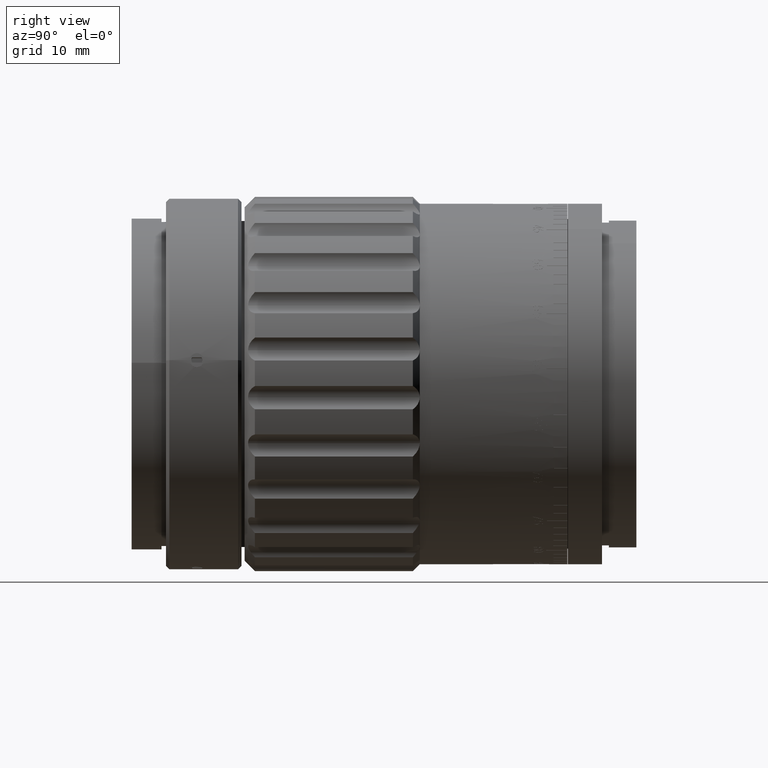
[diagram: clean part render]
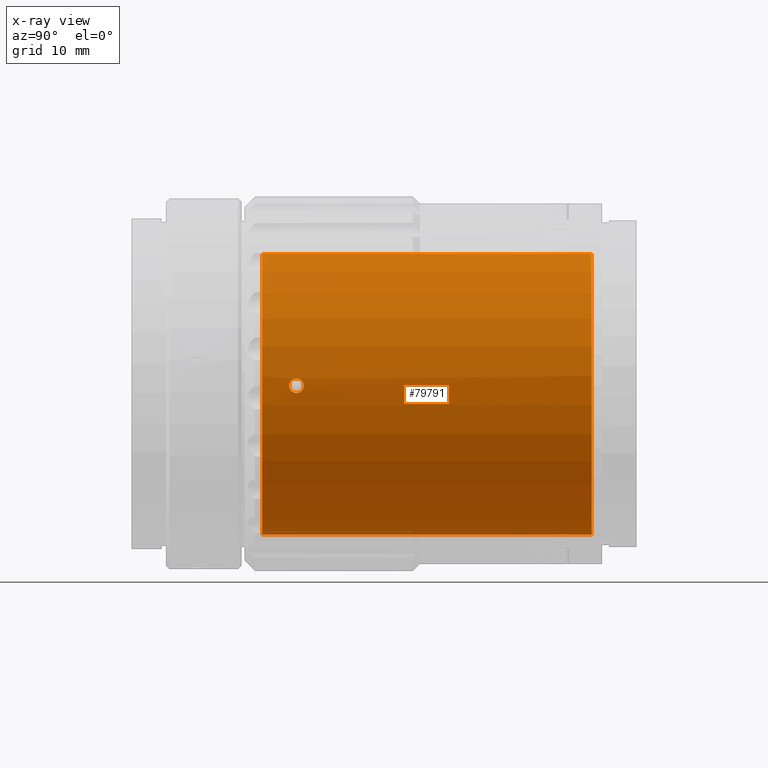
[diagram: x-ray — body ghosted, one internal face saturated and labeled with its STEP entity id]
A machine part, right view, then the same camera in x-ray: the body is ghosted and one INTERNAL B-rep face — a face not visible from any outside direction — is saturated and labeled: STEP entity #79791.
In plain terms, the highlighted cylindrical surface (partial cylindrical patch) has radius 22 mm, axis along (-0, 1, 0).
Its self-contained STEP definition (entity closure, byte-faithful):
#831 = ORIENTED_EDGE ( 'NONE', *, *, #1034, .T. ) ;
#1034 = EDGE_CURVE ( 'NONE', #81718, #77647, #15088, .T. ) ;
#2691 = VECTOR ( 'NONE', #80993, 1000.000000000000000 ) ;
#2780 = CARTESIAN_POINT ( 'NONE',  ( 18.61927182370335000, -26.63334677480301600, 11.71887852234720400 ) ) ;
#2963 = EDGE_CURVE ( 'NONE', #62430, #32272, #72098, .T. ) ;
#3077 = CARTESIAN_POINT ( 'NONE',  ( 19.55584667060311700, -25.85056214873140600, 10.07813777420517800 ) ) ;
#3358 = CARTESIAN_POINT ( 'NONE',  ( 19.55584667060580300, -25.98759798191843700, 10.07813777419994700 ) ) ;
#3969 = CARTESIAN_POINT ( 'NONE',  ( 18.78307176238570300, -25.06996251888181600, 11.45479954550273800 ) ) ;
#4488 = EDGE_CURVE ( 'NONE', #81718, #19071, #63870, .T. ) ;
#8786 = CARTESIAN_POINT ( 'NONE',  ( 0.1384624962215425200, -24.93759798191792500, -22.00000000000000400 ) ) ;
#8914 = AXIS2_PLACEMENT_3D ( 'NONE', #55697, #42595, #77528 ) ;
#9773 = CARTESIAN_POINT ( 'NONE',  ( 19.49473380678137200, -26.51663188224182100, 10.19598630988237400 ) ) ;
#10233 = DIRECTION ( 'NONE',  ( -0.0000000000000000000, 1.000000000000000000, -0.0000000000000000000 ) ) ;
#11050 = VERTEX_POINT ( 'NONE', #37741 ) ;
#12326 = ORIENTED_EDGE ( 'NONE', *, *, #46858, .T. ) ;
#14335 = CARTESIAN_POINT ( 'NONE',  ( 0.0000000000000000000, -30.98759798191792200, 0.0000000000000000000 ) ) ;
#15088 = LINE ( 'NONE', #42917, #75543 ) ;
#15164 = EDGE_LOOP ( 'NONE', ( #85077, #12326 ) ) ;
#16277 = CARTESIAN_POINT ( 'NONE',  ( 0.8391166155942695300, -26.63347520404580100, -21.98420541665341300 ) ) ;
#17092 = CARTESIAN_POINT ( 'NONE',  ( 19.36764743133077000, -25.14879032018012600, 10.43568879136094200 ) ) ;
#19071 = VERTEX_POINT ( 'NONE', #61123 ) ;
#20003 = EDGE_LOOP ( 'NONE', ( #54134, #79674, #831, #81308, #81004, #46816, #82083 ) ) ;
#20438 = LINE ( 'NONE', #28236, #2691 ) ;
#21843 = CARTESIAN_POINT ( 'NONE',  ( 1.022657403894558200, -26.26260699377798200, -21.97628173363153100 ) ) ;
#21863 = CARTESIAN_POINT ( 'NONE',  ( 2.694222978481096500E-015, -27.03759798191791900, -22.00000000000000000 ) ) ;
#22129 = CARTESIAN_POINT ( 'NONE',  ( 0.1370249648630386400, -27.03759798191791900, -21.99999999999999600 ) ) ;
#23488 = CARTESIAN_POINT ( 'NONE',  ( 19.45901568434538100, -26.63222315200917500, 10.26432330678003500 ) ) ;
#23506 = CARTESIAN_POINT ( 'NONE',  ( 18.91442165973855800, -24.96464548024014700, 11.23658625812101500 ) ) ;
#24373 = CARTESIAN_POINT ( 'NONE',  ( 18.98373922634089400, -24.93748388937950000, 11.11921003298695100 ) ) ;
#28048 = DIRECTION ( 'NONE',  ( -0.0000000000000000000, 1.000000000000000000, -0.0000000000000000000 ) ) ;
#28236 = CARTESIAN_POINT ( 'NONE',  ( 2.694222958124176800E-015, 27.76768902714551100, -22.00000000000000000 ) ) ;
#29015 = EDGE_CURVE ( 'NONE', #19071, #41239, #51505, .T. ) ;
#29496 = CARTESIAN_POINT ( 'NONE',  ( 0.2746648881267850800, -24.96484606318873400, -21.99865334570249700 ) ) ;
#29590 = VERTEX_POINT ( 'NONE', #31124 ) ;
#29626 = CARTESIAN_POINT ( 'NONE',  ( 18.57742996113400500, -26.51687130021769800, 11.78481568067971700 ) ) ;
#29921 = CARTESIAN_POINT ( 'NONE',  ( 18.52068240780437600, -26.26254310747903600, 11.87379921245426600 ) ) ;
#30208 = CARTESIAN_POINT ( 'NONE',  ( 19.36670101474446100, -26.82823082978351100, 10.43745736064122400 ) ) ;
#30530 = CARTESIAN_POINT ( 'NONE',  ( 19.54327043175224400, -25.71244169702759700, 10.10263931185707200 ) ) ;
#31015 = CIRCLE ( 'NONE', #77499, 22.00000000000000000 ) ;
#31124 = CARTESIAN_POINT ( 'NONE',  ( 18.50584667060307400, -25.98759798191792200, 11.89679112215261000 ) ) ;
#32272 = VERTEX_POINT ( 'NONE', #86054 ) ;
#33015 = EDGE_CURVE ( 'NONE', #29590, #11050, #33304, .T. ) ;
#33304 = B_SPLINE_CURVE_WITH_KNOTS ( 'NONE', 3,
 ( #41922, #83258, #29921, #29626, #2780, #69540, #76231, #35758, #82954, #43063, #42763, #43364, #30208, #23488, #9773, #76526, #36920, #3358 ),
 .UNSPECIFIED., .F., .F.,
 ( 4, 2, 2, 2, 2, 2, 2, 2, 4 ),
 ( 3.469446951953614200E-018, 0.0004104056922408069100, 0.0008208113844816103500, 0.001231217076722413700, 0.001641622768963217200, 0.002052028461204020700, 0.002462434153444824000, 0.002872839845685627700, 0.003283245537926431000 ),
 .UNSPECIFIED. ) ;
#34358 = CARTESIAN_POINT ( 'NONE',  ( 0.0000000000000000000, 17.01240201808208900, 0.0000000000000000000 ) ) ;
#35758 = CARTESIAN_POINT ( 'NONE',  ( 18.91359356847835100, -27.00998241341090600, 11.23796916777313400 ) ) ;
#36352 = CARTESIAN_POINT ( 'NONE',  ( 18.50584667060307700, -25.71011499211089200, 11.89679112215261200 ) ) ;
#36920 = CARTESIAN_POINT ( 'NONE',  ( 19.55584667060300700, -26.12466502456822700, 10.07813777420538100 ) ) ;
#37071 = DIRECTION ( 'NONE',  ( -0.0000000000000000000, 1.000000000000000000, -0.0000000000000000000 ) ) ;
#37235 = CARTESIAN_POINT ( 'NONE',  ( 18.72207168930246000, -25.14777770515352300, 11.55393636945051800 ) ) ;
#37741 = CARTESIAN_POINT ( 'NONE',  ( 19.55584667060580300, -25.98759798191843700, 10.07813777419994700 ) ) ;
#38931 = FACE_BOUND ( 'NONE', #15164, .T. ) ;
#39487 = CARTESIAN_POINT ( 'NONE',  ( 2.694222959134874500E-015, -24.93759798191792100, -22.00000000000000000 ) ) ;
#41239 = VERTEX_POINT ( 'NONE', #21863 ) ;
#41922 = CARTESIAN_POINT ( 'NONE',  ( 18.50584667060307400, -25.98759798191792200, 11.89679112215261000 ) ) ;
#42070 = CARTESIAN_POINT ( 'NONE',  ( 0.9359957725577251500, -25.43855400198756900, -21.98093482476240700 ) ) ;
#42595 = DIRECTION ( 'NONE',  ( -0.0000000000000000000, 1.000000000000000000, -0.0000000000000000000 ) ) ;
#42763 = CARTESIAN_POINT ( 'NONE',  ( 19.18852888640512700, -27.01044228479297300, 10.76180883151191000 ) ) ;
#42917 = CARTESIAN_POINT ( 'NONE',  ( 0.0000000000000000000, 27.76768902714551100, 22.00000000000000000 ) ) ;
#43063 = CARTESIAN_POINT ( 'NONE',  ( 19.12086945240270800, -27.03764672068351200, 10.88168727588324600 ) ) ;
#43364 = CARTESIAN_POINT ( 'NONE',  ( 19.31165099353660600, -26.90524202066539100, 10.53927445577959800 ) ) ;
#44252 = CARTESIAN_POINT ( 'NONE',  ( 19.18926782051414600, -24.96517474697339300, 10.76048916796342800 ) ) ;
#44651 = AXIS2_PLACEMENT_3D ( 'NONE', #14335, #28048, #47018 ) ;
#46218 = FACE_OUTER_BOUND ( 'NONE', #20003, .T. ) ;
#46576 = EDGE_CURVE ( 'NONE', #77647, #72827, #31015, .T. ) ;
#46816 = ORIENTED_EDGE ( 'NONE', *, *, #2963, .T. ) ;
#46858 = EDGE_CURVE ( 'NONE', #11050, #29590, #47765, .T. ) ;
#47018 = DIRECTION ( 'NONE',  ( 0.0000000000000000000, 0.0000000000000000000, 1.000000000000000000 ) ) ;
#47765 = B_SPLINE_CURVE_WITH_KNOTS ( 'NONE', 3,
 ( #50057, #3077, #30530, #77129, #50927, #17092, #57069, #44252, #57642, #24373, #23506, #3969, #37235, #83575, #36352, #83876 ),
 .UNSPECIFIED., .F., .F.,
 ( 4, 2, 2, 2, 2, 2, 2, 4 ),
 ( 0.003283245537926431000, 0.003693557782897869000, 0.004103870027869307500, 0.004514182272840745900, 0.004924494517812183500, 0.005334806762783622000, 0.005745119007755060400, 0.006565743497697933800 ),
 .UNSPECIFIED. ) ;
#48050 = DIRECTION ( 'NONE',  ( 0.0000000000000000000, 0.0000000000000000000, 1.000000000000000000 ) ) ;
#49113 = EDGE_CURVE ( 'NONE', #62430, #72827, #20438, .T. ) ;
#49552 = CARTESIAN_POINT ( 'NONE',  ( 1.050000000000006300, -25.98759798191791900, -21.97492889635822900 ) ) ;
#49848 = CARTESIAN_POINT ( 'NONE',  ( 0.6452734556052705000, -26.82717897748728200, -21.99074866082714800 ) ) ;
#50057 = CARTESIAN_POINT ( 'NONE',  ( 19.55584667060580300, -25.98759798191843700, 10.07813777419994700 ) ) ;
#50927 = CARTESIAN_POINT ( 'NONE',  ( 19.45871696526921500, -25.34252416813497900, 10.26487708840264200 ) ) ;
#51022 = B_SPLINE_CURVE_WITH_KNOTS ( 'NONE', 3,
 ( #49552, #81908, #21843, #56255, #16277, #49848, #75184, #62955, #22129, #69639 ),
 .UNSPECIFIED., .F., .F.,
 ( 4, 2, 2, 2, 4 ),
 ( 0.0000000000000000000, 0.0004104990821378704400, 0.0008209981642757408800, 0.001231497246413611300, 0.001641996328551481800 ),
 .UNSPECIFIED. ) ;
#51505 = LINE ( 'NONE', #56300, #52511 ) ;
#52511 = VECTOR ( 'NONE', #37071, 1000.000000000000000 ) ;
#52917 = CARTESIAN_POINT ( 'NONE',  ( 0.0000000000000000000, 17.01240201808208900, 22.00000000000000000 ) ) ;
#53490 = CYLINDRICAL_SURFACE ( 'NONE', #8914, 22.00000000000000000 ) ;
#53850 = EDGE_CURVE ( 'NONE', #32272, #41239, #51022, .T. ) ;
#54134 = ORIENTED_EDGE ( 'NONE', *, *, #29015, .F. ) ;
#55697 = CARTESIAN_POINT ( 'NONE',  ( 0.0000000000000000000, 27.76768902714551100, 0.0000000000000000000 ) ) ;
#55738 = CARTESIAN_POINT ( 'NONE',  ( 1.050000000000006300, -25.98759798191791900, -21.97492889635822900 ) ) ;
#56034 = CARTESIAN_POINT ( 'NONE',  ( 0.6453629775125604400, -25.14809457406774800, -21.99074583981704800 ) ) ;
#56255 = CARTESIAN_POINT ( 'NONE',  ( 0.9171759427038890200, -26.51698103082469500, -21.98093663363352900 ) ) ;
#56300 = CARTESIAN_POINT ( 'NONE',  ( 2.694222958124176800E-015, 27.76768902714551100, -22.00000000000000000 ) ) ;
#57069 = CARTESIAN_POINT ( 'NONE',  ( 19.31221054893713100, -25.07064458686189900, 10.53824702380803500 ) ) ;
#57176 = CARTESIAN_POINT ( 'NONE',  ( 2.694222958124176800E-015, 17.01240201808208900, -22.00000000000000000 ) ) ;
#57642 = CARTESIAN_POINT ( 'NONE',  ( 19.12224608677885800, -24.93771279130265800, 10.87928726378995800 ) ) ;
#61123 = CARTESIAN_POINT ( 'NONE',  ( 2.694222958124176800E-015, -30.98759798191792200, -22.00000000000000000 ) ) ;
#61178 = DIRECTION ( 'NONE',  ( -0.0000000000000000000, 1.000000000000000000, -0.0000000000000000000 ) ) ;
#62430 = VERTEX_POINT ( 'NONE', #39487 ) ;
#62955 = CARTESIAN_POINT ( 'NONE',  ( 0.2752685310984183100, -27.01006777960279900, -21.99864111046231900 ) ) ;
#63870 = CIRCLE ( 'NONE', #44651, 22.00000000000000000 ) ;
#68839 = CARTESIAN_POINT ( 'NONE',  ( 0.0000000000000000000, -30.98759798191792200, 22.00000000000000000 ) ) ;
#69540 = CARTESIAN_POINT ( 'NONE',  ( 18.72182047818960300, -26.82704297232857700, 11.55434269220559400 ) ) ;
#69639 = CARTESIAN_POINT ( 'NONE',  ( 2.694222978481096500E-015, -27.03759798191791900, -22.00000000000000000 ) ) ;
#72098 = B_SPLINE_CURVE_WITH_KNOTS ( 'NONE', 3,
 ( #76096, #8786, #29496, #75519, #56034, #42070, #82535, #55738 ),
 .UNSPECIFIED., .F., .F.,
 ( 4, 2, 2, 4 ),
 ( 0.004925351103780365900, 0.005335449202259754000, 0.005745547300739141200, 0.006565743497697924300 ),
 .UNSPECIFIED. ) ;
#72827 = VERTEX_POINT ( 'NONE', #57176 ) ;
#75184 = CARTESIAN_POINT ( 'NONE',  ( 0.5280778904711541700, -26.90539479657048000, -21.99402457970644400 ) ) ;
#75519 = CARTESIAN_POINT ( 'NONE',  ( 0.5291009126521584200, -25.07025698083676000, -21.99400468421765700 ) ) ;
#75543 = VECTOR ( 'NONE', #10233, 1000.000000000000000 ) ;
#76096 = CARTESIAN_POINT ( 'NONE',  ( 2.694222959134874500E-015, -24.93759798191792100, -22.00000000000000000 ) ) ;
#76231 = CARTESIAN_POINT ( 'NONE',  ( 18.78323229724549400, -26.90526577262764400, 11.45452561903454700 ) ) ;
#76526 = CARTESIAN_POINT ( 'NONE',  ( 19.54340781873590800, -26.26213487929536300, 10.10237565422833100 ) ) ;
#77129 = CARTESIAN_POINT ( 'NONE',  ( 19.49497256239587300, -25.45971369266461800, 10.19552769725597800 ) ) ;
#77499 = AXIS2_PLACEMENT_3D ( 'NONE', #34358, #61178, #48050 ) ;
#77528 = DIRECTION ( 'NONE',  ( 0.0000000000000000000, 0.0000000000000000000, 1.000000000000000000 ) ) ;
#77647 = VERTEX_POINT ( 'NONE', #52917 ) ;
#79674 = ORIENTED_EDGE ( 'NONE', *, *, #4488, .F. ) ;
#79791 = ADVANCED_FACE ( 'NONE', ( #46218, #38931 ), #53490, .F. ) ;
#80993 = DIRECTION ( 'NONE',  ( -0.0000000000000000000, 1.000000000000000000, -0.0000000000000000000 ) ) ;
#81004 = ORIENTED_EDGE ( 'NONE', *, *, #49113, .F. ) ;
#81308 = ORIENTED_EDGE ( 'NONE', *, *, #46576, .T. ) ;
#81718 = VERTEX_POINT ( 'NONE', #68839 ) ;
#81908 = CARTESIAN_POINT ( 'NONE',  ( 1.050000000000006500, -26.12640265326350400, -21.97492889635822500 ) ) ;
#82083 = ORIENTED_EDGE ( 'NONE', *, *, #53850, .T. ) ;
#82535 = CARTESIAN_POINT ( 'NONE',  ( 1.050000000000006500, -25.71025981354773600, -21.97492889635823200 ) ) ;
#82954 = CARTESIAN_POINT ( 'NONE',  ( 18.98387422857160400, -27.03754910988006800, 11.11896064655869200 ) ) ;
#83258 = CARTESIAN_POINT ( 'NONE',  ( 18.50584667060307000, -26.12637107474230200, 11.89679112215260800 ) ) ;
#83575 = CARTESIAN_POINT ( 'NONE',  ( 18.56811481689640800, -25.43827787464436300, 11.80096470723135500 ) ) ;
#83876 = CARTESIAN_POINT ( 'NONE',  ( 18.50584667060307400, -25.98759798191792200, 11.89679112215261000 ) ) ;
#85077 = ORIENTED_EDGE ( 'NONE', *, *, #33015, .T. ) ;
#86054 = CARTESIAN_POINT ( 'NONE',  ( 1.050000000000006300, -25.98759798191791900, -21.97492889635822900 ) ) ;